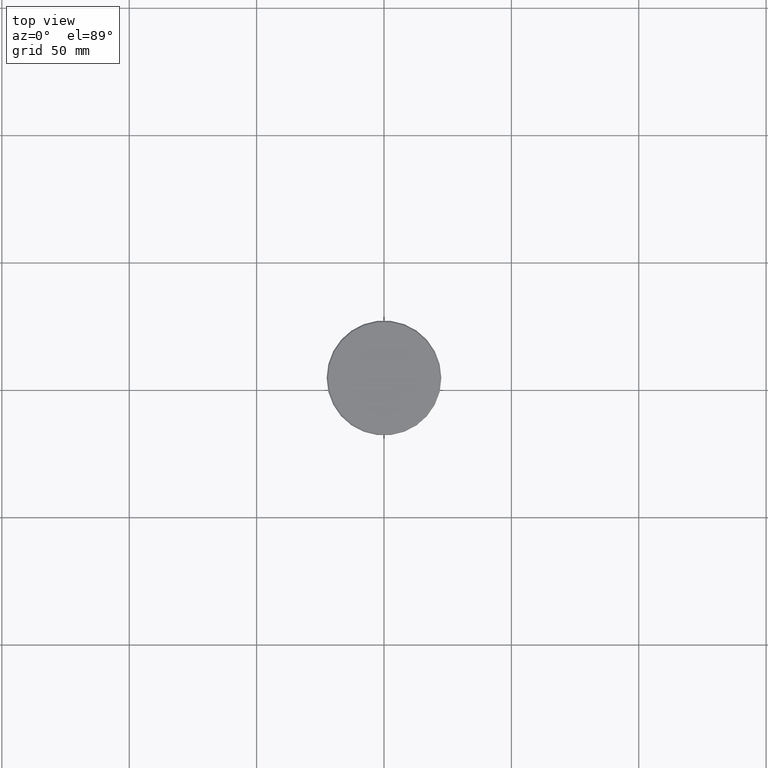
[diagram: clean part render]
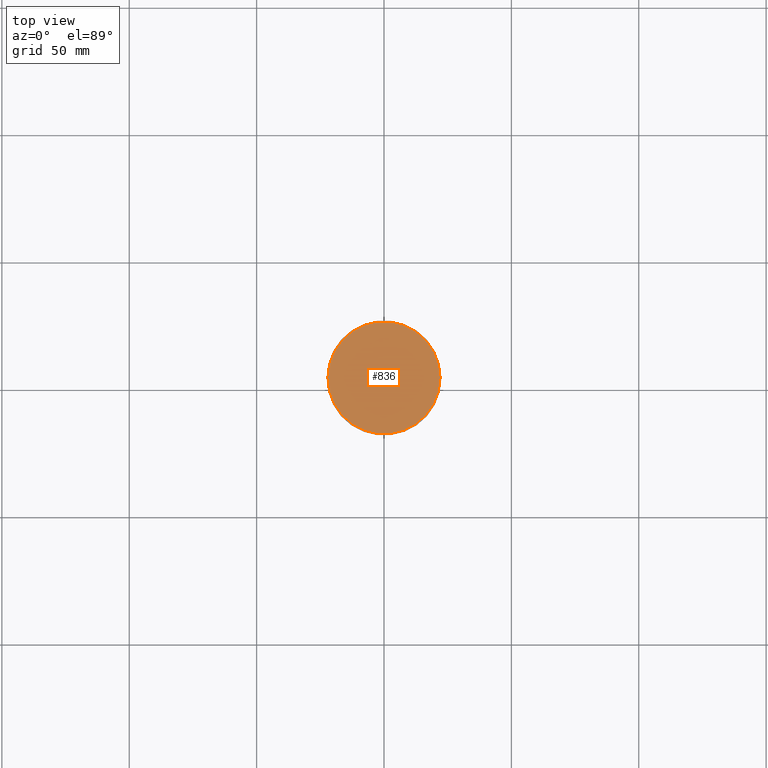
[diagram: same view with one face highlighted and labeled with its STEP entity id]
A machine part, top view. The second image highlights one B-rep face of the part: STEP entity #836.
In plain terms, the highlighted planar face has unit normal (0, -0, 1).
Its self-contained STEP definition (entity closure, byte-faithful):
#17 = DIRECTION ( 'NONE',  ( 1.000000000000000000, 0.000000000000000000, 0.000000000000000000 ) ) ;
#138 = ORIENTED_EDGE ( 'NONE', *, *, #586, .T. ) ;
#161 = CIRCLE ( 'NONE', #256, 22.00000000000004619 ) ;
#207 = AXIS2_PLACEMENT_3D ( 'NONE', #345, #708, #519 ) ;
#256 = AXIS2_PLACEMENT_3D ( 'NONE', #930, #460, #17 ) ;
#295 = AXIS2_PLACEMENT_3D ( 'NONE', #1123, #310, #1139 ) ;
#310 = DIRECTION ( 'NONE',  ( -0.000000000000000000, -0.000000000000000000, 1.000000000000000000 ) ) ;
#345 = CARTESIAN_POINT ( 'NONE',  ( 0.000000000000000000, 0.000000000000000000, 0.000000000000000000 ) ) ;
#460 = DIRECTION ( 'NONE',  ( -0.000000000000000000, -0.000000000000000000, 1.000000000000000000 ) ) ;
#501 = EDGE_CURVE ( 'NONE', #790, #1163, #161, .T. ) ;
#519 = DIRECTION ( 'NONE',  ( 1.000000000000000000, 0.000000000000000000, 0.000000000000000000 ) ) ;
#586 = EDGE_CURVE ( 'NONE', #1163, #790, #1039, .T. ) ;
#602 = CARTESIAN_POINT ( 'NONE',  ( 22.00000000000004619, 2.724839128102864146E-15, 0.000000000000000000 ) ) ;
#699 = FACE_OUTER_BOUND ( 'NONE', #909, .T. ) ;
#706 = CARTESIAN_POINT ( 'NONE',  ( -22.00000000000004619, 0.000000000000000000, 0.000000000000000000 ) ) ;
#708 = DIRECTION ( 'NONE',  ( 0.000000000000000000, -0.000000000000000000, 1.000000000000000000 ) ) ;
#790 = VERTEX_POINT ( 'NONE', #602 ) ;
#836 = ADVANCED_FACE ( 'NONE', ( #699 ), #1067, .T. ) ;
#909 = EDGE_LOOP ( 'NONE', ( #138, #1165 ) ) ;
#930 = CARTESIAN_POINT ( 'NONE',  ( 0.000000000000000000, 0.000000000000000000, 0.000000000000000000 ) ) ;
#1039 = CIRCLE ( 'NONE', #295, 22.00000000000004619 ) ;
#1067 = PLANE ( 'NONE',  #207 ) ;
#1123 = CARTESIAN_POINT ( 'NONE',  ( 0.000000000000000000, 0.000000000000000000, 0.000000000000000000 ) ) ;
#1139 = DIRECTION ( 'NONE',  ( 1.000000000000000000, 0.000000000000000000, 0.000000000000000000 ) ) ;
#1163 = VERTEX_POINT ( 'NONE', #706 ) ;
#1165 = ORIENTED_EDGE ( 'NONE', *, *, #501, .T. ) ;